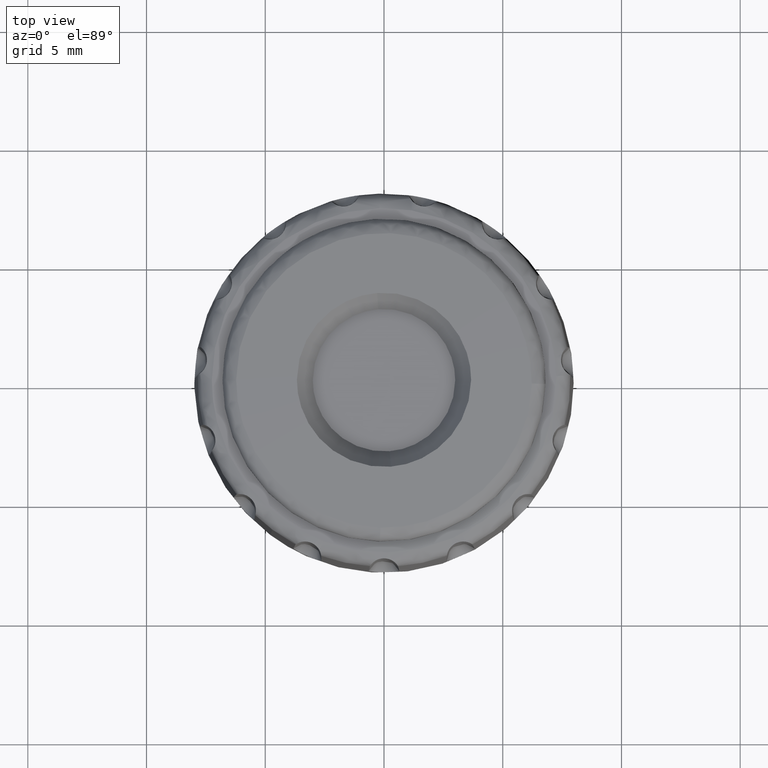
[diagram: clean part render]
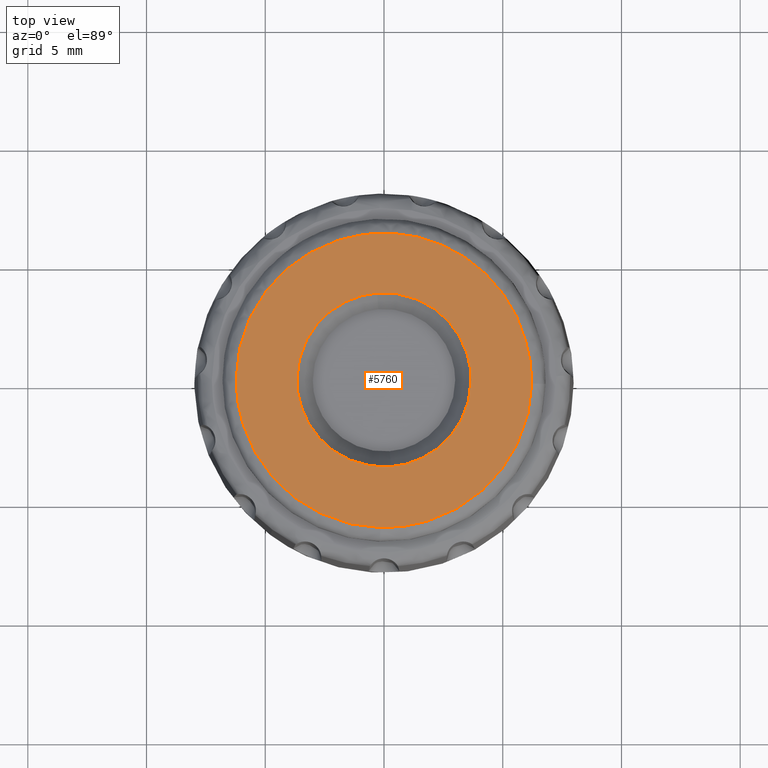
[diagram: same view with one face highlighted and labeled with its STEP entity id]
A machine part, top view. The second image highlights one B-rep face of the part: STEP entity #5760.
In plain terms, the highlighted face is a freeform B-spline surface patch.
Its self-contained STEP definition (entity closure, byte-faithful):
#886=CARTESIAN_POINT('',(-0.287849710442218,3.657477354074904,10.955126627764329));
#887=VERTEX_POINT('',#886);
#893=CARTESIAN_POINT('',(-3.668787000000000,0.0,10.955126627763660));
#894=VERTEX_POINT('',#893);
#895=CARTESIAN_POINT('',(-3.668787000000000,0.0,10.955126627763660));
#896=CARTESIAN_POINT('',(-3.668786999999999,3.391391818711599,10.955126627763660));
#897=CARTESIAN_POINT('',(-0.287849710442218,3.657477354074904,10.955126627764333));
#905=(BOUNDED_CURVE()B_SPLINE_CURVE(2,(#895,#896,#897),.UNSPECIFIED.,.F.,.U.)B_SPLINE_CURVE_WITH_KNOTS((3,3),(0.0,0.236331300632382),.UNSPECIFIED.)CURVE()GEOMETRIC_REPRESENTATION_ITEM()RATIONAL_B_SPLINE_CURVE((1.0,0.723120658605648,0.969723356171012))REPRESENTATION_ITEM(''));
#906=EDGE_CURVE('',#894,#887,#905,.T.);
#908=CARTESIAN_POINT('',(0.287849710442219,-3.657477354074904,10.955126627764329));
#909=VERTEX_POINT('',#908);
#910=CARTESIAN_POINT('',(0.287849710442219,-3.657477354074904,10.955126627764324));
#911=CARTESIAN_POINT('',(0.144147033822474,-3.668787000000000,10.955126627763660));
#912=CARTESIAN_POINT('',(0.0,-3.668787000000000,10.955126627763660));
#913=CARTESIAN_POINT('',(-3.668787000000000,-3.668787000000000,10.955126627763660));
#914=CARTESIAN_POINT('',(-3.668787000000000,0.0,10.955126627763660));
#922=(BOUNDED_CURVE()B_SPLINE_CURVE(2,(#910,#911,#912,#913,#914),.UNSPECIFIED.,.F.,.U.)B_SPLINE_CURVE_WITH_KNOTS((3,2,3),(0.736331300632382,0.750000000000000,1.0),.UNSPECIFIED.)CURVE()GEOMETRIC_REPRESENTATION_ITEM()RATIONAL_B_SPLINE_CURVE((0.969723356171012,0.983986122580900,1.0,0.707106781186548,1.0))REPRESENTATION_ITEM(''));
#923=EDGE_CURVE('',#909,#894,#922,.T.);
#999=CARTESIAN_POINT('',(3.668787000000000,0.0,10.955126627763660));
#1000=VERTEX_POINT('',#999);
#1001=CARTESIAN_POINT('',(3.668787000000000,0.0,10.955126627763660));
#1002=CARTESIAN_POINT('',(3.668786999999999,-3.391391818711599,10.955126627763660));
#1003=CARTESIAN_POINT('',(0.287849710442219,-3.657477354074904,10.955126627764333));
#1011=(BOUNDED_CURVE()B_SPLINE_CURVE(2,(#1001,#1002,#1003),.UNSPECIFIED.,.F.,.U.)B_SPLINE_CURVE_WITH_KNOTS((3,3),(0.500000000000000,0.736331300632382),.UNSPECIFIED.)CURVE()GEOMETRIC_REPRESENTATION_ITEM()RATIONAL_B_SPLINE_CURVE((1.0,0.723120658605648,0.969723356171012))REPRESENTATION_ITEM(''));
#1012=EDGE_CURVE('',#1000,#909,#1011,.T.);
#1014=CARTESIAN_POINT('',(-0.287849710442218,3.657477354074904,10.955126627764324));
#1015=CARTESIAN_POINT('',(-0.144147033822474,3.668787000000000,10.955126627763660));
#1016=CARTESIAN_POINT('',(0.0,3.668787000000000,10.955126627763660));
#1017=CARTESIAN_POINT('',(3.668787000000000,3.668787000000000,10.955126627763660));
#1018=CARTESIAN_POINT('',(3.668787000000000,0.0,10.955126627763660));
#1026=(BOUNDED_CURVE()B_SPLINE_CURVE(2,(#1014,#1015,#1016,#1017,#1018),.UNSPECIFIED.,.F.,.U.)B_SPLINE_CURVE_WITH_KNOTS((3,2,3),(0.236331300632382,0.250000000000000,0.500000000000000),.UNSPECIFIED.)CURVE()GEOMETRIC_REPRESENTATION_ITEM()RATIONAL_B_SPLINE_CURVE((0.969723356171012,0.983986122580900,1.0,0.707106781186548,1.0))REPRESENTATION_ITEM(''));
#1027=EDGE_CURVE('',#887,#1000,#1026,.T.);
#3543=CARTESIAN_POINT('',(-0.156432296181891,-6.222932717152220,10.870779798246550));
#3544=VERTEX_POINT('',#3543);
#3558=CARTESIAN_POINT('',(-6.224898594377520,0.0,10.870779798764360));
#3559=VERTEX_POINT('',#3558);
#3560=CARTESIAN_POINT('',(-0.156432296181891,-6.222932717152220,10.870779798246545));
#3561=CARTESIAN_POINT('',(-6.224898594377521,-6.070383390574622,10.870779798764360));
#3562=CARTESIAN_POINT('',(-6.224898594377520,0.0,10.870779798764360));
#3570=(BOUNDED_CURVE()B_SPLINE_CURVE(2,(#3560,#3561,#3562),.UNSPECIFIED.,.F.,.U.)B_SPLINE_CURVE_WITH_KNOTS((3,3),(0.754420108233949,1.0),.UNSPECIFIED.)CURVE()GEOMETRIC_REPRESENTATION_ITEM()RATIONAL_B_SPLINE_CURVE((0.989826157673086,0.712285260099128,1.0))REPRESENTATION_ITEM(''));
#3571=EDGE_CURVE('',#3544,#3559,#3570,.T.);
#3573=CARTESIAN_POINT('',(6.222932735984559,-0.156432296652698,10.870779797464101));
#3574=VERTEX_POINT('',#3573);
#3575=CARTESIAN_POINT('',(-6.224898594377520,0.0,10.870779798764360));
#3576=CARTESIAN_POINT('',(-6.225402578308717,0.822172814485037,10.870758865738800));
#3577=CARTESIAN_POINT('',(-6.060297520033361,1.644214354369319,10.870768436750661));
#3578=CARTESIAN_POINT('',(-5.740449663661243,2.401716079328809,10.870870094733499));
#3579=CARTESIAN_POINT('',(-5.422724511222102,3.154190564434185,10.870971078052451));
#3580=CARTESIAN_POINT('',(-4.954793073360721,3.843029356277530,10.871115724760580));
#3581=CARTESIAN_POINT('',(-4.368184473151318,4.411863205925413,10.871236339545691));
#3582=CARTESIAN_POINT('',(-3.854326319538203,4.910151010755344,10.871341995839771));
#3583=CARTESIAN_POINT('',(-3.254291842099147,5.319186706145851,10.871363357447979));
#3584=CARTESIAN_POINT('',(-2.600253328935231,5.610713584392252,10.871082402892419));
#3585=CARTESIAN_POINT('',(-2.532305751585111,5.641000096135212,10.871053214731459));
#3586=CARTESIAN_POINT('',(-2.465002430492004,5.672824768878692,10.871104470183830));
#3587=CARTESIAN_POINT('',(-2.396044491586375,5.700911777519548,10.871082402892419));
#3588=CARTESIAN_POINT('',(-2.219091416283146,5.772985894494964,10.871025775981270));
#3589=CARTESIAN_POINT('',(-2.040788951326685,5.842330996886098,10.871124698883500));
#3590=CARTESIAN_POINT('',(-1.857699434727148,5.898336808875615,10.871082402892419));
#3591=CARTESIAN_POINT('',(-1.678647420350844,5.953107576966271,10.871041039615360));
#3592=CARTESIAN_POINT('',(-1.498167572033037,6.003865388825337,10.871113292812970));
#3593=CARTESIAN_POINT('',(-1.314622978211671,6.042614560426671,10.871082402892419));
#3594=CARTESIAN_POINT('',(-1.176598765779733,6.071753658350031,10.871059173894670));
#3595=CARTESIAN_POINT('',(-1.037973916890841,6.098526276884429,10.871099774876130));
#3596=CARTESIAN_POINT('',(-0.898130187804907,6.118397377293832,10.871082402892410));
#3597=CARTESIAN_POINT('',(-0.547246688417113,6.168256182503845,10.871038814649470));
#3598=CARTESIAN_POINT('',(-0.192130440630508,6.192417162288511,10.871115213076060));
#3599=CARTESIAN_POINT('',(0.163155331720575,6.181812407251910,10.871082402892419));
#3600=CARTESIAN_POINT('',(0.562151248216850,6.169902969035324,10.871045556133240));
#3601=CARTESIAN_POINT('',(0.960729756569322,6.123060204360209,10.871111057814341));
#3602=CARTESIAN_POINT('',(1.351058243476402,6.034572555157238,10.871082402892419));
#3603=CARTESIAN_POINT('',(2.179296851604712,5.846810478161149,10.871021599970160));
#3604=CARTESIAN_POINT('',(2.971558141466949,5.492524719111668,10.871151146434061));
#3605=CARTESIAN_POINT('',(3.656587350350025,4.987062587333620,10.871082402892419));
#3606=CARTESIAN_POINT('',(4.039360635800429,4.704625870267338,10.871043991112391));
#3607=CARTESIAN_POINT('',(4.391743390062159,4.381098354191288,10.871113200898890));
#3608=CARTESIAN_POINT('',(4.699684181984002,4.019252777610769,10.871082402892419));
#3609=CARTESIAN_POINT('',(4.893614895105085,3.791374651208535,10.871063007347839));
#3610=CARTESIAN_POINT('',(5.072373820350005,3.550848805541414,10.871097208840849));
#3611=CARTESIAN_POINT('',(5.231206208176369,3.297863840163741,10.871082402892419));
#3612=CARTESIAN_POINT('',(5.579527537697432,2.743064780002763,10.871049933270120));
#3613=CARTESIAN_POINT('',(5.841087713193875,2.135890954928648,10.871114500692100));
#3614=CARTESIAN_POINT('',(5.998295856461128,1.503951834030527,10.871082402892419));
#3615=CARTESIAN_POINT('',(6.008861268868108,1.461481404130200,10.871080245710971));
#3616=CARTESIAN_POINT('',(6.021772079009301,1.419583200630654,10.871148931644310));
#3617=CARTESIAN_POINT('',(6.031749144231482,1.376953117225273,10.871154145096710));
#3618=CARTESIAN_POINT('',(6.058051897800105,1.264566503180814,10.871167889434419));
#3619=CARTESIAN_POINT('',(6.086772087825199,1.152687358614086,10.871266741891681));
#3620=CARTESIAN_POINT('',(6.107361565552681,1.039027445977359,10.871276797064811));
#3621=CARTESIAN_POINT('',(6.127581756201836,0.927406105548046,10.871286671891189));
#3622=CARTESIAN_POINT('',(6.148870358579302,0.815936442700245,10.871296464905940));
#3623=CARTESIAN_POINT('',(6.163384429089923,0.703367932008069,10.871287103205921));
#3624=CARTESIAN_POINT('',(6.200149125209165,0.418227585944233,10.871263389661470));
#3625=CARTESIAN_POINT('',(6.225072700013860,0.131357893950854,10.870991332194629));
#3626=CARTESIAN_POINT('',(6.222932735984559,-0.156432296652698,10.870779797464101));
#3627=B_SPLINE_CURVE_WITH_KNOTS('',3,(#3575,#3576,#3577,#3578,#3579,#3580,#3581,#3582,#3583,#3584,#3585,#3586,#3587,#3588,#3589,#3590,#3591,#3592,#3593,#3594,#3595,#3596,#3597,#3598,#3599,#3600,#3601,#3602,#3603,#3604,#3605,#3606,#3607,#3608,#3609,#3610,#3611,#3612,#3613,#3614,#3615,#3616,#3617,#3618,#3619,#3620,#3621,#3622,#3623,#3624,#3625,#3626),.UNSPECIFIED.,.F.,.U.,(4,3,3,3,3,3,3,3,3,3,3,3,3,3,3,3,3,4),(0.0,2.466518907660383,4.916668503218961,7.062953686900579,7.285929667058303,7.858108679857083,8.417669962929068,8.838456017126786,9.894255116275154,11.079947204120341,13.595869042895639,15.001688905284640,15.887026787061840,17.828583369294449,17.959068632821150,18.303069764862439,18.640900989406610,19.496640411429460),.UNSPECIFIED.);
#3628=EDGE_CURVE('',#3559,#3574,#3627,.T.);
#3668=CARTESIAN_POINT('',(6.222932735984559,-0.156432296652698,10.870779797464101));
#3669=CARTESIAN_POINT('',(6.070383390642336,-6.224898594377520,10.870779798764360));
#3670=CARTESIAN_POINT('',(0.0,-6.224898594377520,10.870779798764360));
#3671=CARTESIAN_POINT('',(-0.078228500667137,-6.224898594377520,10.870779798764357));
#3672=CARTESIAN_POINT('',(-0.156432296181891,-6.222932717152221,10.870779798246549));
#3680=(BOUNDED_CURVE()B_SPLINE_CURVE(2,(#3668,#3669,#3670,#3671,#3672),.UNSPECIFIED.,.F.,.U.)B_SPLINE_CURVE_WITH_KNOTS((3,2,3),(0.504420108231998,0.750000000000000,0.754420108233948),.UNSPECIFIED.)CURVE()GEOMETRIC_REPRESENTATION_ITEM()RATIONAL_B_SPLINE_CURVE((0.989826157677496,0.712285260096842,1.0,0.994821521087420,0.989826157673087))REPRESENTATION_ITEM(''));
#3681=EDGE_CURVE('',#3574,#3544,#3680,.T.);
#5725=CARTESIAN_POINT('',(-6.842489739824814,-6.838478039221848,10.687726792370841));
#5726=CARTESIAN_POINT('',(-3.423027447652848,-6.842041104478713,10.843873660302204));
#5727=CARTESIAN_POINT('',(3.422045250049518,-6.842041104478713,10.843873660302204));
#5728=CARTESIAN_POINT('',(6.840528411611992,-6.838480082624047,10.687816341910302));
#5729=CARTESIAN_POINT('',(-6.846050713908185,-3.421018462766365,10.843690523233509));
#5730=CARTESIAN_POINT('',(-3.424809791042303,-3.422801850654203,10.999999999999940));
#5731=CARTESIAN_POINT('',(3.423827082016428,-3.422801850654203,10.999999999999940));
#5732=CARTESIAN_POINT('',(6.844088366043639,-3.421019485531171,10.843780166004116));
#5733=CARTESIAN_POINT('',(-6.846050713908185,3.401502088561513,10.843690523233509));
#5734=CARTESIAN_POINT('',(-3.424809791042303,3.403275302500934,10.999999999999940));
#5735=CARTESIAN_POINT('',(3.423827082016428,3.403275302500934,10.999999999999940));
#5736=CARTESIAN_POINT('',(6.844088366043639,3.401503105491605,10.843780166004116));
#5737=CARTESIAN_POINT('',(-6.842530232696666,6.799505831961962,10.689500301309488));
#5738=CARTESIAN_POINT('',(-3.423047715192409,6.803048612431800,10.845649017837259));
#5739=CARTESIAN_POINT('',(3.422065511773545,6.803048612431800,10.845649017837259));
#5740=CARTESIAN_POINT('',(6.840568892889076,6.799507863730913,10.689589851908815));
#5748=(BOUNDED_SURFACE()B_SPLINE_SURFACE(2,2,((#5725,#5729,#5733,#5737),(#5726,#5730,#5734,#5738),(#5727,#5731,#5735,#5739),(#5728,#5732,#5736,#5740)),.UNSPECIFIED.,.F.,.F.,.U.)B_SPLINE_SURFACE_WITH_KNOTS((3,1,3),(3,1,3),(59.045757293701172,65.726838369230023,72.406002386856073),(59.049674361610407,65.726838369230023,72.365910202598570),.UNSPECIFIED.)GEOMETRIC_REPRESENTATION_ITEM()RATIONAL_B_SPLINE_SURFACE(((1.001041995316163,1.000521303204659,1.000521303204659,1.001036071328419),(1.000520692111504,1.0,1.0,1.000514768123761),(1.000520692111504,1.0,1.0,1.000514768123761),(1.001041696195395,1.000521004083891,1.000521004083891,1.001035772207652)))REPRESENTATION_ITEM('')SURFACE());
#5749=ORIENTED_EDGE('',*,*,#3571,.F.);
#5750=ORIENTED_EDGE('',*,*,#3681,.F.);
#5751=ORIENTED_EDGE('',*,*,#3628,.F.);
#5752=EDGE_LOOP('',(#5749,#5750,#5751));
#5753=FACE_OUTER_BOUND('',#5752,.T.);
#5754=ORIENTED_EDGE('',*,*,#1012,.T.);
#5755=ORIENTED_EDGE('',*,*,#923,.T.);
#5756=ORIENTED_EDGE('',*,*,#906,.T.);
#5757=ORIENTED_EDGE('',*,*,#1027,.T.);
#5758=EDGE_LOOP('',(#5754,#5755,#5756,#5757));
#5759=FACE_BOUND('',#5758,.T.);
#5760=ADVANCED_FACE('',(#5753,#5759),#5748,.T.);